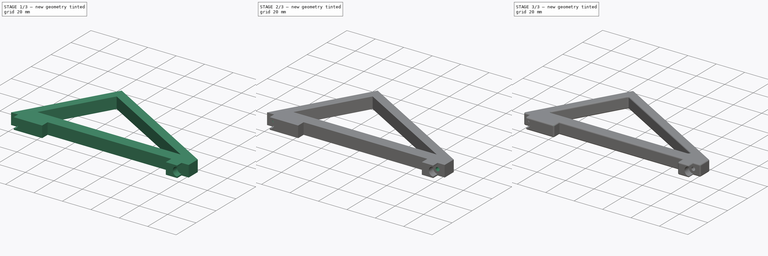
[diagram: build sequence overview — one tinted view per stage of 3, left to right]
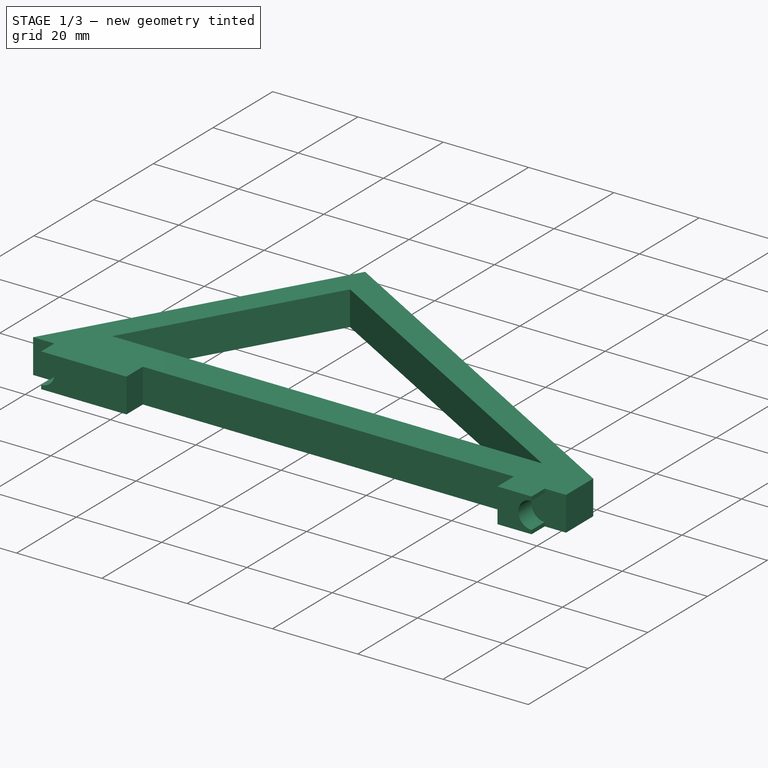
[diagram: stage 1 of 3 — iso view after this stage's code; geometry added in this stage tinted green]
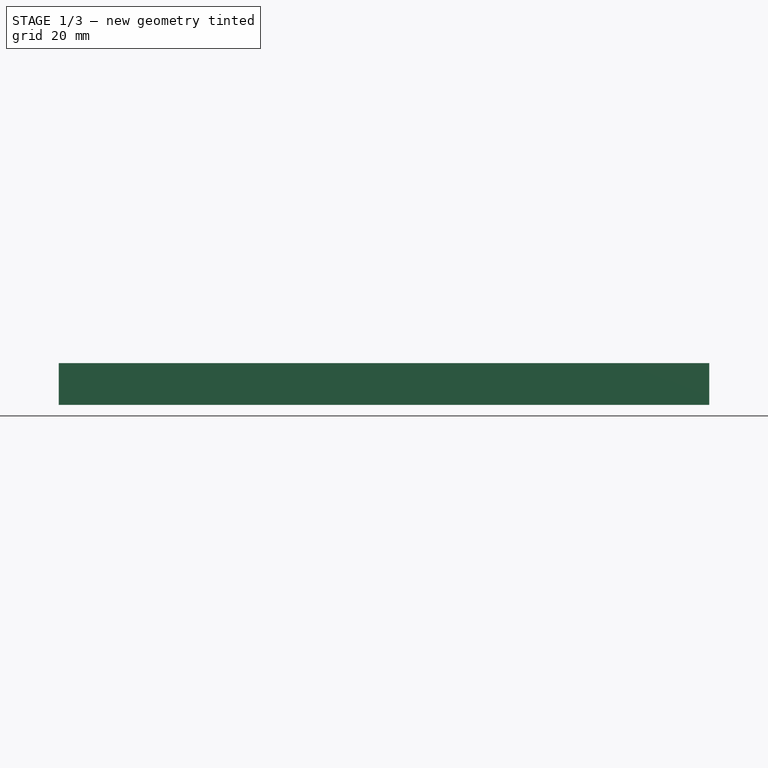
[diagram: stage 1 of 3 — front view after this stage's code; geometry added in this stage tinted green]
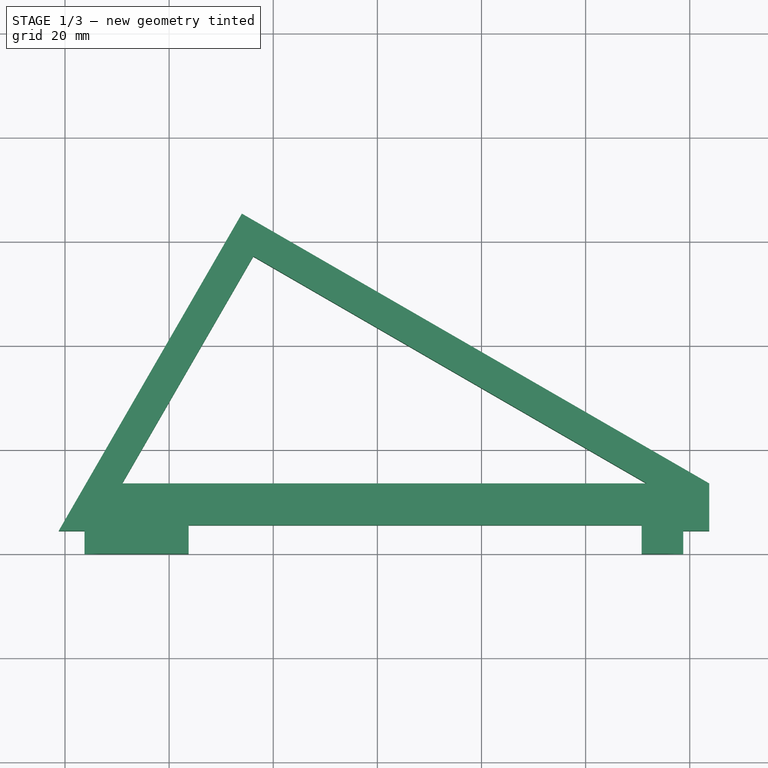
[diagram: stage 1 of 3 — top view after this stage's code; geometry added in this stage tinted green]
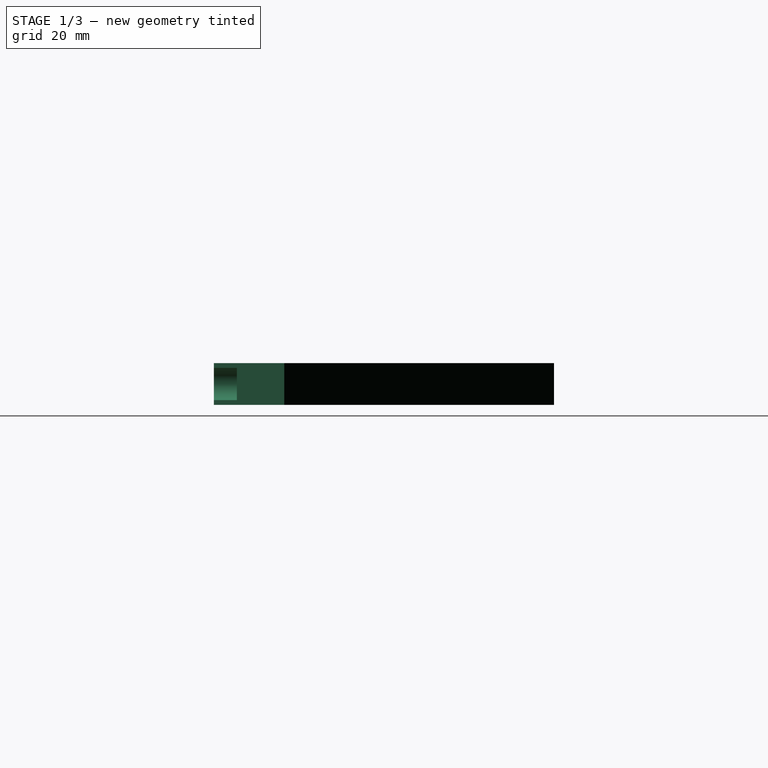
[diagram: stage 1 of 3 — right view after this stage's code; geometry added in this stage tinted green]
FCSTD DOCUMENT  (FreeCAD 0.20R29410 (Git))
Label: TouchPanelHolder
License: All rights reserved
LicenseURL: http://en.wikipedia.org/wiki/All_rights_reserved
objects: Sketcher::SketchObject×5, PartDesign::Pocket×3, PartDesign::Pad×1, PartDesign::Fillet×1, PartDesign::Body×1
note: 16 computed .brp shape members not serialized (recipe doc carries the construction recipe); baked Part::Feature solids carry a one-line shape summary decoded from their .brp

FEATURE [Sketcher::SketchObject] Sketch
  FullyConstrained = true
  MapMode = 5
  Support = -> [XY_Plane]
  sketch-geometry (23):
    g0: LineSegment StartX=-26.0293 StartY=65.3341 StartZ=0 EndX=-63.75 EndY=-1.42e-14 EndZ=0
    g1: GeomPoint X=-56.25 Y=-1.42e-14 Z=0
    g2: GeomPoint X=58.75 Y=-1.42e-14 Z=0
    g3: LineSegment StartX=-23.8332 StartY=57.138 StartZ=0 EndX=-49.0276 EndY=13.5 EndZ=0
    g4: LineSegment StartX=-49.0276 StartY=13.5 StartZ=0 EndX=51.75 EndY=13.5 EndZ=0
    g5: LineSegment StartX=51.75 StartY=13.5 StartZ=0 EndX=-23.8332 EndY=57.138 EndZ=0
    g6: LineSegment StartX=-23.8332 StartY=57.138 StartZ=0 EndX=-20.8332 EndY=62.3341 EndZ=0
    g7: LineSegment StartX=63.75 StartY=13.5 StartZ=0 EndX=-26.0293 EndY=65.3341 EndZ=0
    g8: LineSegment StartX=63.75 StartY=-1.42e-14 StartZ=0 EndX=63.75 EndY=13.5 EndZ=0
    g9: LineSegment StartX=-56.25 StartY=-1.42e-14 StartZ=0 EndX=-56.25 EndY=12.9904 EndZ=0
    g10: LineSegment StartX=58.75 StartY=-1.42e-14 StartZ=0 EndX=58.75 EndY=16.3868 EndZ=0
    g11: LineSegment StartX=-23.8332 StartY=57.138 StartZ=0 EndX=-29.0293 EndY=60.138 EndZ=0
    g12: LineSegment StartX=-36.25 StartY=-1.42e-14 StartZ=0 EndX=50.75 EndY=-1.42e-14 EndZ=0
    g13: LineSegment StartX=-36.25 StartY=-1.42e-14 StartZ=0 EndX=-36.25 EndY=5.5 EndZ=0
    g14: LineSegment StartX=-36.25 StartY=5.5 StartZ=0 EndX=50.75 EndY=5.5 EndZ=0
    g15: LineSegment StartX=50.75 StartY=5.5 StartZ=0 EndX=50.75 EndY=-1.42e-14 EndZ=0
    g16: LineSegment StartX=51.75 StartY=13.5 StartZ=0 EndX=51.75 EndY=5.5 EndZ=0
    g17: LineSegment StartX=50.75 StartY=-1.42e-14 StartZ=0 EndX=58.75 EndY=-1.42e-14 EndZ=0
    g18: LineSegment StartX=58.75 StartY=-1.42e-14 StartZ=0 EndX=63.75 EndY=-1.42e-14 EndZ=0
    g19: LineSegment StartX=-61.2674 StartY=4.3 StartZ=0 EndX=-36.25 EndY=4.3 EndZ=0
    g20: LineSegment StartX=50.75 StartY=4.3 StartZ=0 EndX=63.75 EndY=4.3 EndZ=0
    g21: LineSegment StartX=-63.75 StartY=-1.42e-14 StartZ=0 EndX=-56.25 EndY=-1.42e-14 EndZ=0
    g22: LineSegment StartX=-56.25 StartY=-1.42e-14 StartZ=0 EndX=-36.25 EndY=-1.42e-14 EndZ=0
  constraints (65):
    c: Coincident(g7,g0)
    c: Coincident(g3,g4)
    c: Horizontal(g4)
    c: Coincident(g4,g5)
    c: Coincident(g5,g3)
    c: Parallel(g3,g0)
    c: Coincident(g6,g3)
    c: DistanceX(g1,g2) = 115
    c: Distance(g6) = 6
    c: PointOnObject(g6,g7)
    c: Coincident(g8,g18)
    c: Vertical(g8)
    c: Coincident(g9,g1)
    c: PointOnObject(g9,g0)
    c: Vertical(g9)
    c: Coincident(g10,g2)
    c: PointOnObject(g10,g7)
    c: Vertical(g10)
    c: Perpendicular(g0,g7)
    c: Perpendicular(g5,g3)
    c: PointOnObject(g6,g3)
    c: Coincident(g11,g3)
    c: PointOnObject(g11,g0)
    c: PointOnObject(g11,g5)
    c: PointOnObject(g7,g4)
    c: Coincident(g7,g8)
    c: Coincident(g22,g12)
    c: Horizontal(g12)
    c: Coincident(g22,g13)
    c: Vertical(g13)
    c: Coincident(g13,g14)
    c: Horizontal(g14)
    c: Vertical(g15)
    c: DistanceY(g13,g13) = 5.5
    c: Coincident(g15,g14)
    c: DistanceX(g14,g10) = 8
    c: Coincident(g17,g15)
    c: Coincident(g0,g21)
    c: Equal(g11,g6)
    c: Coincident(g16,g4)
    c: PointOnObject(g16,g14)
    c: Vertical(g16)
    c: DistanceY(g16,g16) = 8
    c: Coincident(g12,g17)
    c: Coincident(g17,g18)
    c: Horizontal(g17)
    c: Horizontal(g18)
    c: Coincident(g17,g10)
    c: PointOnObject(g19,g0)
    c: PointOnObject(g19,g13)
    c: Horizontal(g19)
    c: PointOnObject(g20,g15)
    c: PointOnObject(g20,g8)
    c: Horizontal(g20)
    c: DistanceY(g0,g19) = 4.3
    c: PointOnObject(g20,g19)
    c: Symmetric(g0,g8,g-1)  '_-_'
    c: Coincident(g21,g22)
    c: Horizontal(g21)
    c: Horizontal(g22)
    c: Coincident(g1,g21)
    c: DistanceX(g22,g22) = 20
    c: Angle(g4,g3) = 1.0472
    c: DistanceX(g0,g9) = 7.5
    c: DistanceX(g10,g7) = 5
FEATURE [Sketcher::SketchObject] Sketch001
  ExternalGeometry = -> [Sketch]
  FullyConstrained = true
  MapMode = 5
  Support = -> [XY_Plane]
  sketch-geometry (11):
    g0: LineSegment StartX=-63.75 StartY=5.86e-14 StartZ=0 EndX=-26.0293 EndY=65.3341 EndZ=0
    g1: LineSegment StartX=-26.0293 StartY=65.3341 StartZ=0 EndX=63.75 EndY=13.5 EndZ=0
    g2: LineSegment StartX=63.75 StartY=13.5 StartZ=0 EndX=63.75 EndY=3.201e-12 EndZ=0
    g3: LineSegment StartX=63.75 StartY=3.201e-12 StartZ=0 EndX=50.75 EndY=-3.0941e-12 EndZ=0
    g4: LineSegment StartX=50.75 StartY=-3.0941e-12 StartZ=0 EndX=50.75 EndY=5.5 EndZ=0
    g5: LineSegment StartX=50.75 StartY=5.5 StartZ=0 EndX=-36.25 EndY=5.5 EndZ=0
    g6: LineSegment StartX=-36.25 StartY=5.5 StartZ=0 EndX=-36.25 EndY=-9.3889e-12 EndZ=0
    g7: LineSegment StartX=-36.25 StartY=-9.3889e-12 StartZ=0 EndX=-63.75 EndY=5.86e-14 EndZ=0
    g8: LineSegment StartX=-49.0276 StartY=13.5 StartZ=0 EndX=-23.8332 EndY=57.138 EndZ=0
    g9: LineSegment StartX=-23.8332 StartY=57.138 StartZ=0 EndX=51.75 EndY=13.5 EndZ=0
    g10: LineSegment StartX=51.75 StartY=13.5 StartZ=0 EndX=-49.0276 EndY=13.5 EndZ=0
  constraints (22):
    c: Coincident(g-6,g0)
    c: Coincident(g0,g-6)
    c: Coincident(g0,g1)
    c: Coincident(g1,g-5)
    c: Coincident(g1,g2)
    c: Coincident(g2,g-5)
    c: Coincident(g2,g3)
    c: Coincident(g3,g-4)
    c: Coincident(g3,g4)
    c: Coincident(g4,g-4)
    c: Coincident(g4,g5)
    c: Coincident(g5,g-3)
    c: Coincident(g5,g6)
    c: Coincident(g6,g-3)
    c: Coincident(g6,g7)
    c: Coincident(g7,g0)
    c: Coincident(g-7,g8)
    c: Coincident(g8,g-8)
    c: Coincident(g8,g9)
    c: Coincident(g9,g-8)
    c: Coincident(g9,g10)
    c: Coincident(g10,g8)
FEATURE [PartDesign::Pad] Pad
  Direction = (0,0,1)
  Length = 8
  Length2 = 10
  Midplane = true
  Profile = -> Sketch001
  ReferenceAxis = -> Sketch001 [N_Axis]
  Type = 0
FEATURE [Sketcher::SketchObject] Sketch002
  ExternalGeometry = -> [Sketch]
  FullyConstrained = true
  MapMode = 5
  Placement = pos=(0,0,0) rot=(1,0,0;1.5708rad)
  Support = -> [XZ_Plane]
  expr: Constraints[27] = <<Pad>>.Length
  sketch-geometry (14):
    g0: ArcOfCircle CenterX=-56.25 CenterY=-1.4e-15 CenterZ=0 NormalX=0 NormalY=0 NormalZ=1 AngleXU=0 Radius=3.1 StartAngle=4.71239 EndAngle=7.85398
    g1: LineSegment StartX=-56.25 StartY=4 StartZ=0 EndX=-63.75 EndY=4 EndZ=0
    g2: LineSegment StartX=-63.75 StartY=4 StartZ=0 EndX=-63.75 EndY=-4 EndZ=0
    g3: LineSegment StartX=-63.75 StartY=-4 StartZ=0 EndX=-56.25 EndY=-4 EndZ=0
    g4: ArcOfCircle CenterX=58.75 CenterY=-1.8e-15 CenterZ=0 NormalX=0 NormalY=0 NormalZ=1 AngleXU=0 Radius=3.1 StartAngle=1.5708 EndAngle=4.71239
    g5: LineSegment StartX=58.75 StartY=4 StartZ=0 EndX=63.75 EndY=4 EndZ=0
    g6: LineSegment StartX=63.75 StartY=4 StartZ=0 EndX=63.75 EndY=-4 EndZ=0
    g7: LineSegment StartX=63.75 StartY=-4 StartZ=0 EndX=58.75 EndY=-4 EndZ=0
    g8: LineSegment StartX=-56.25 StartY=3.1 StartZ=0 EndX=-56.25 EndY=-3.1 EndZ=0
    g9: LineSegment StartX=-56.25 StartY=3.1 StartZ=0 EndX=-56.25 EndY=4 EndZ=0
    g10: LineSegment StartX=-56.25 StartY=-3.1 StartZ=0 EndX=-56.25 EndY=-4 EndZ=0
    g11: LineSegment StartX=58.75 StartY=-3.1 StartZ=0 EndX=58.75 EndY=-4 EndZ=0
    g12: LineSegment StartX=58.75 StartY=3.1 StartZ=0 EndX=58.75 EndY=4 EndZ=0
    g13: LineSegment StartX=58.75 StartY=-3.1 StartZ=0 EndX=58.75 EndY=3.1 EndZ=0
  constraints (40):
    c: Coincident(g0,g-3)
    c: Radius(g0) = 3.1
    c: Horizontal(g1)
    c: Coincident(g2,g1)
    c: Vertical(g2)
    c: Coincident(g3,g2)
    c: Horizontal(g3)
    c: Coincident(g4,g-4)
    c: Equal(g0,g4)
    c: Horizontal(g5)
    c: Coincident(g6,g5)
    c: Vertical(g6)
    c: Coincident(g7,g6)
    c: Horizontal(g7)
    c: PointOnObject(g-6,g6)
    c: Coincident(g8,g0)
    c: Coincident(g8,g0)
    c: Vertical(g8)
    c: PointOnObject(g0,g8)
    c: Coincident(g9,g0)
    c: Coincident(g9,g1)
    c: Vertical(g9)
    c: Coincident(g10,g0)
    c: Vertical(g10)
    c: Coincident(g3,g10)
    c: PointOnObject(g-5,g2)
    c: Equal(g9,g10)
    c: DistanceY(g2,g2) = 8
    c: Coincident(g11,g4)
    c: Vertical(g11)
    c: Coincident(g12,g4)
    c: Vertical(g12)
    c: Coincident(g5,g12)
    c: Coincident(g7,g11)
    c: Coincident(g13,g4)
    c: Coincident(g13,g4)
    c: Vertical(g13)
    c: PointOnObject(g4,g13)
    c: Equal(g9,g12)
    c: Equal(g11,g10)
FEATURE [PartDesign::Pocket] Pocket
  BaseFeature = -> Pad
  Direction = (0,1,2e-16)
  Length = 4.4
  Length2 = 5
  Profile = -> Sketch002
  ReferenceAxis = -> Sketch002 [N_Axis]
  Type = 0
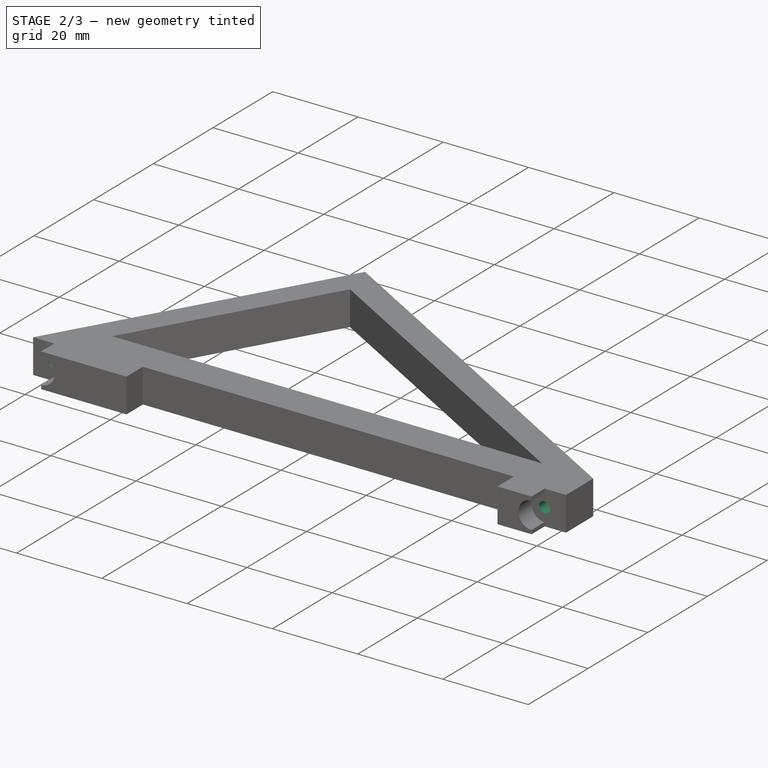
[diagram: stage 2 of 3 — iso view after this stage's code; geometry added in this stage tinted green]
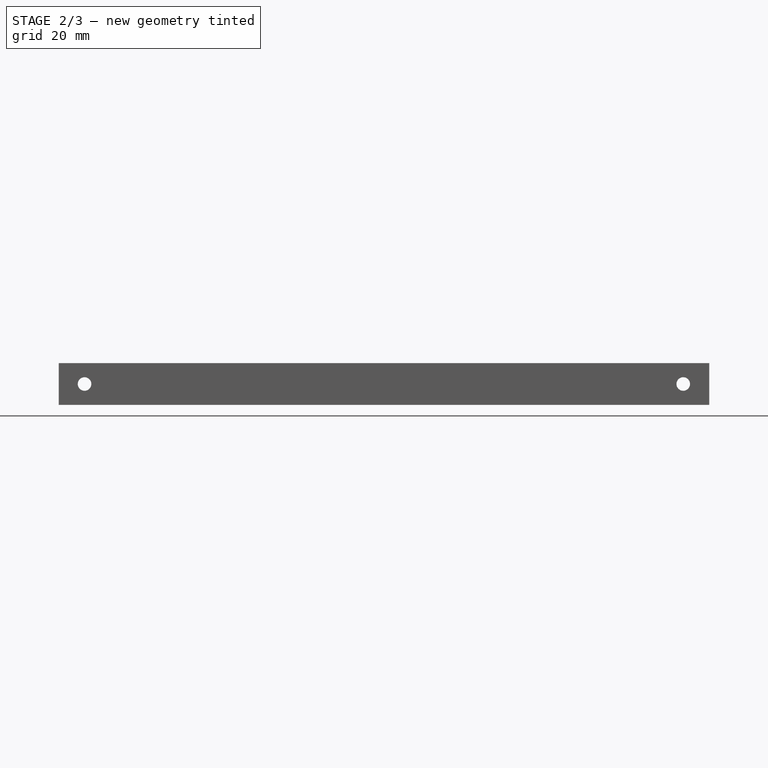
[diagram: stage 2 of 3 — front view after this stage's code; geometry added in this stage tinted green]
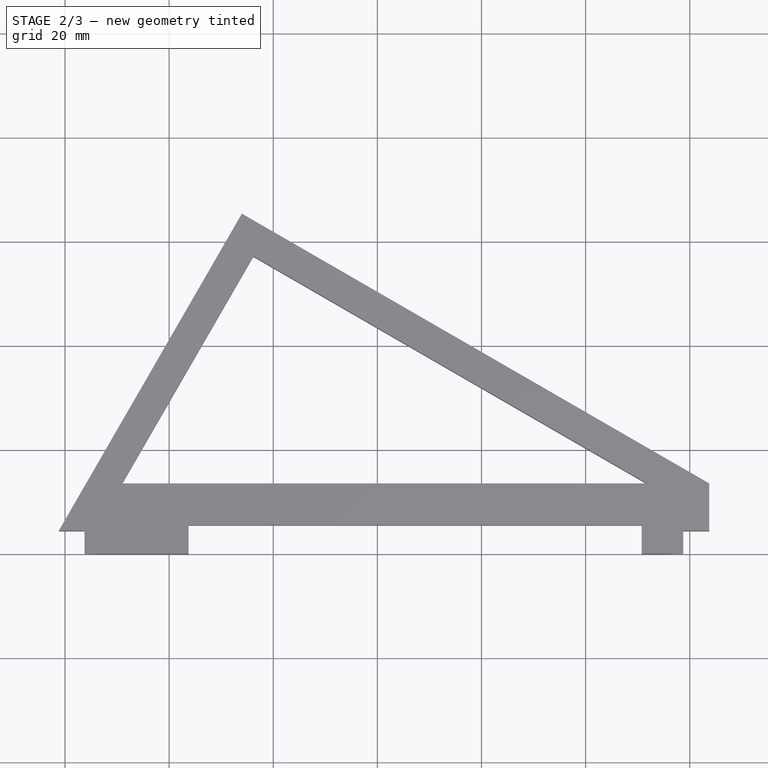
[diagram: stage 2 of 3 — top view after this stage's code; geometry added in this stage tinted green]
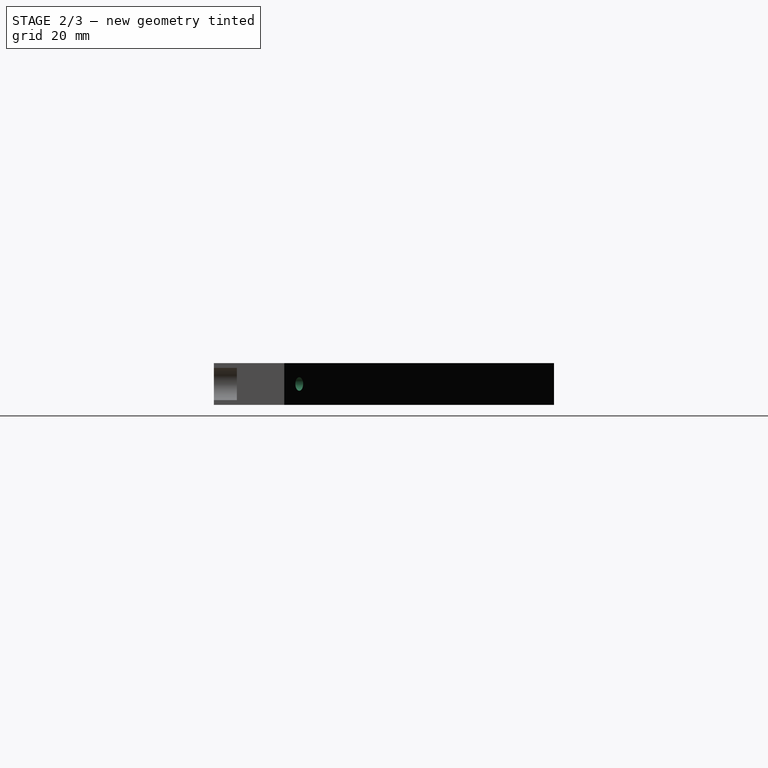
[diagram: stage 2 of 3 — right view after this stage's code; geometry added in this stage tinted green]
FEATURE [Sketcher::SketchObject] Sketch003
  AttachmentOffset = pos=(0,0,-4.4) rot=(0,0,1;0rad)
  ExternalGeometry = -> [Sketch]
  FullyConstrained = true
  MapMode = 5
  Placement = pos=(0,4.4,1e-15) rot=(1,0,0;1.5708rad)
  Support = -> [XZ_Plane]
  expr: .AttachmentOffset.Base.z = <<Sketch002>>.AttachmentOffset.Base.z - <<Pocket>>.Length
  sketch-geometry (2):
    g0: Circle CenterX=-56.25 CenterY=-1.273e-13 CenterZ=0 NormalX=0 NormalY=0 NormalZ=1 AngleXU=0 Radius=1.3
    g1: Circle CenterX=58.75 CenterY=-1.268e-13 CenterZ=0 NormalX=0 NormalY=0 NormalZ=1 AngleXU=0 Radius=1.3
  constraints (4):
    c: Radius(g0) = 1.3
    c: Equal(g0,g1)
    c: Coincident(g1,g-4)
    c: Coincident(g0,g-3)
FEATURE [PartDesign::Pocket] Pocket001
  BaseFeature = -> Pocket
  Direction = (0,1,2e-16)
  Length = 5
  Length2 = 5
  Profile = -> Sketch003
  ReferenceAxis = -> Sketch003 [N_Axis]
  Type = 1
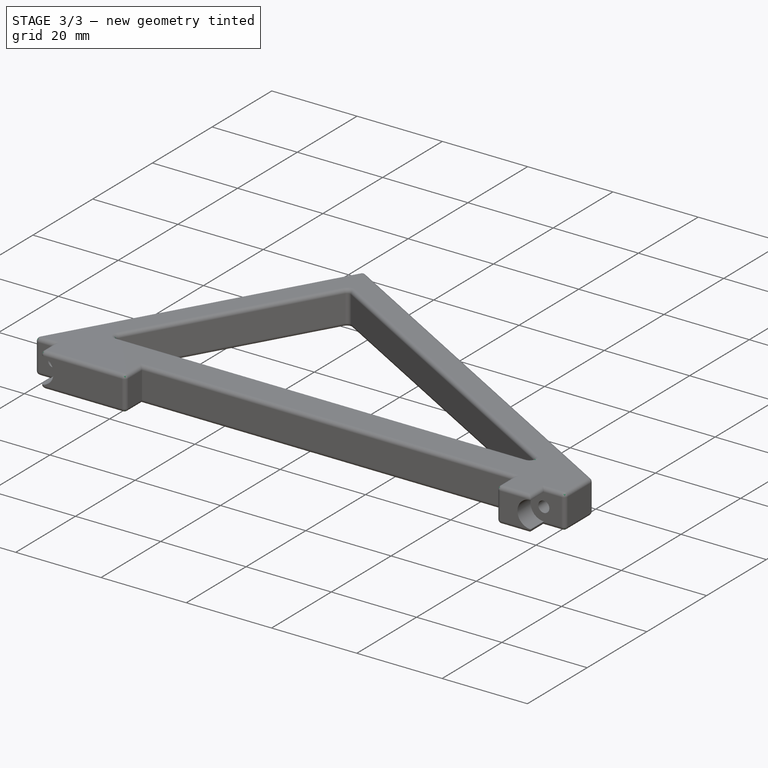
[diagram: stage 3 of 3 — iso view after this stage's code; geometry added in this stage tinted green]
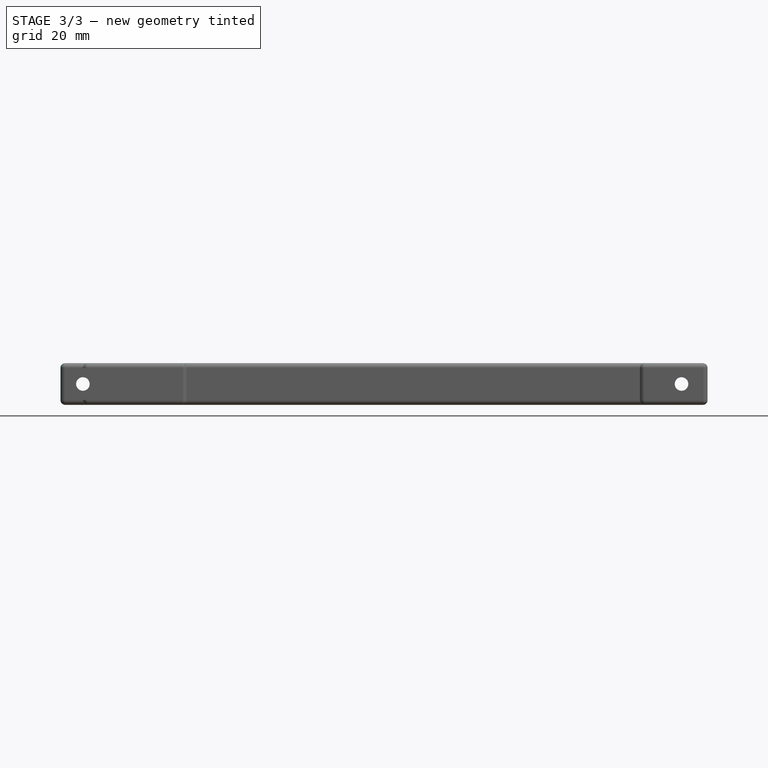
[diagram: stage 3 of 3 — front view after this stage's code; geometry added in this stage tinted green]
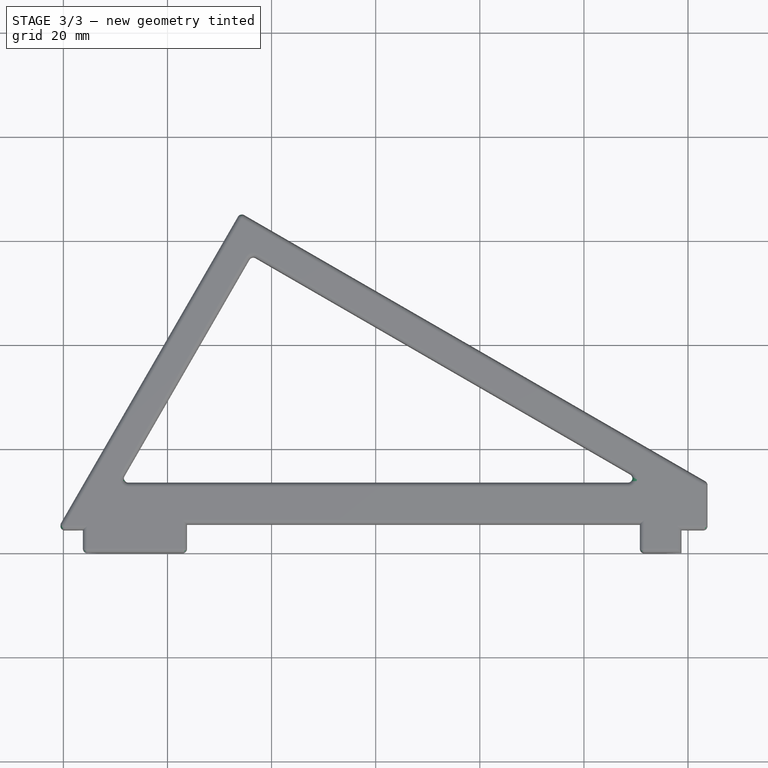
[diagram: stage 3 of 3 — top view after this stage's code; geometry added in this stage tinted green]
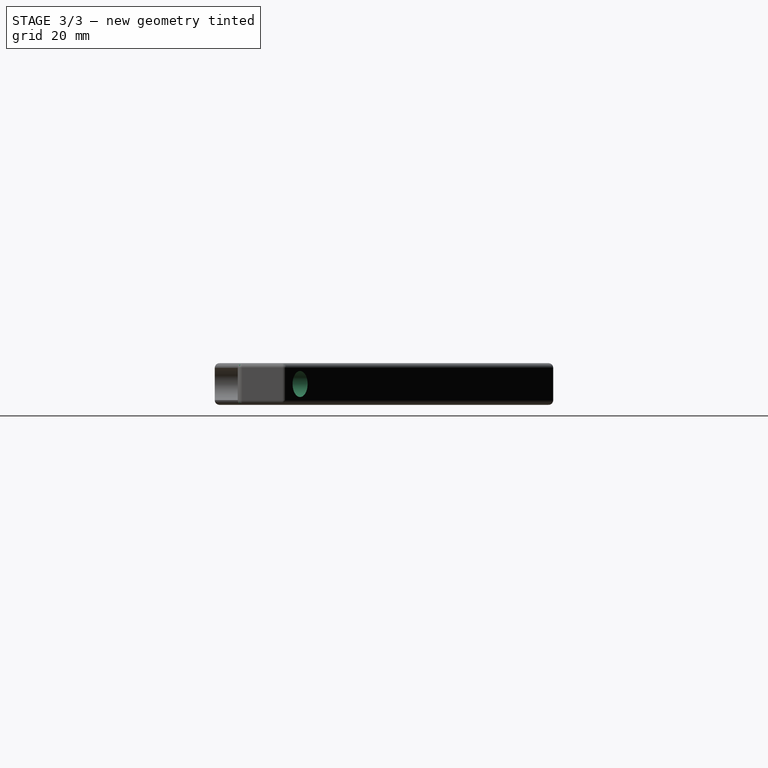
[diagram: stage 3 of 3 — right view after this stage's code; geometry added in this stage tinted green]
FEATURE [Sketcher::SketchObject] Sketch004
  AttachmentOffset = pos=(0,0,-7.4) rot=(0,0,1;0rad)
  ExternalGeometry = -> [Sketch]
  FullyConstrained = true
  MapMode = 5
  Placement = pos=(0,7.4,1.6e-15) rot=(1,0,0;1.5708rad)
  Support = -> [XZ_Plane]
  expr: .AttachmentOffset.Base.z = <<Sketch002>>.AttachmentOffset.Base.z - <<Pocket>>.Length - 3mm
  sketch-geometry (2):
    g0: Circle CenterX=-56.25 CenterY=-8.21e-14 CenterZ=0 NormalX=0 NormalY=0 NormalZ=1 AngleXU=0 Radius=2.5
    g1: Circle CenterX=58.75 CenterY=-8.15e-14 CenterZ=0 NormalX=0 NormalY=0 NormalZ=1 AngleXU=0 Radius=2.5
  constraints (4):
    c: Radius(g0) = 2.5
    c: Equal(g0,g1)
    c: Coincident(g1,g-4)
    c: Coincident(g0,g-3)
FEATURE [PartDesign::Pocket] Pocket002
  BaseFeature = -> Pocket001
  Direction = (0,1,2e-16)
  Length = 5
  Length2 = 5
  Profile = -> Sketch004
  ReferenceAxis = -> Sketch004 [N_Axis]
  Type = 1
FEATURE [PartDesign::Fillet] Fillet
  Base = -> Pocket002 [Face2,Face5,Face7,Face16,Face17,Face18,Edge3,Edge2,Edge57,Edge55,Edge54,Edge49]
  BaseFeature = -> Pocket002
  Radius = 0.89
  SupportTransform = false
  UseAllEdges = false
FEATURE [PartDesign::Body] Body
  Group = -> [Sketch,Sketch001,Pad,Sketch002,Pocket,Sketch003,Pocket001,Sketch004,Pocket002,Fillet]
  Origin = -> Origin
  Tip = -> Fillet
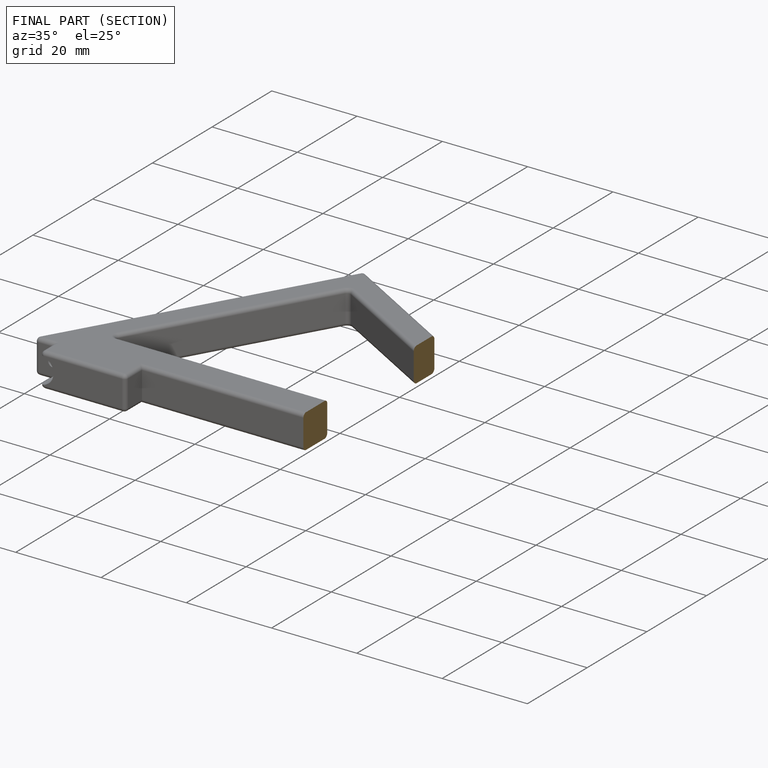
[diagram: finished part — half-section view (interior)]
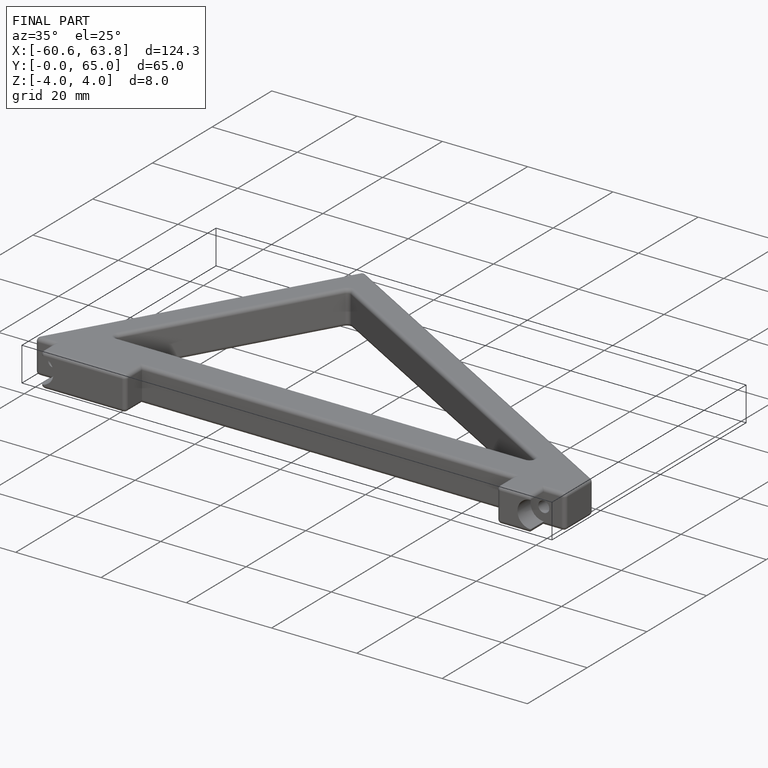
[diagram: finished part — iso view with bounding-box wireframe]
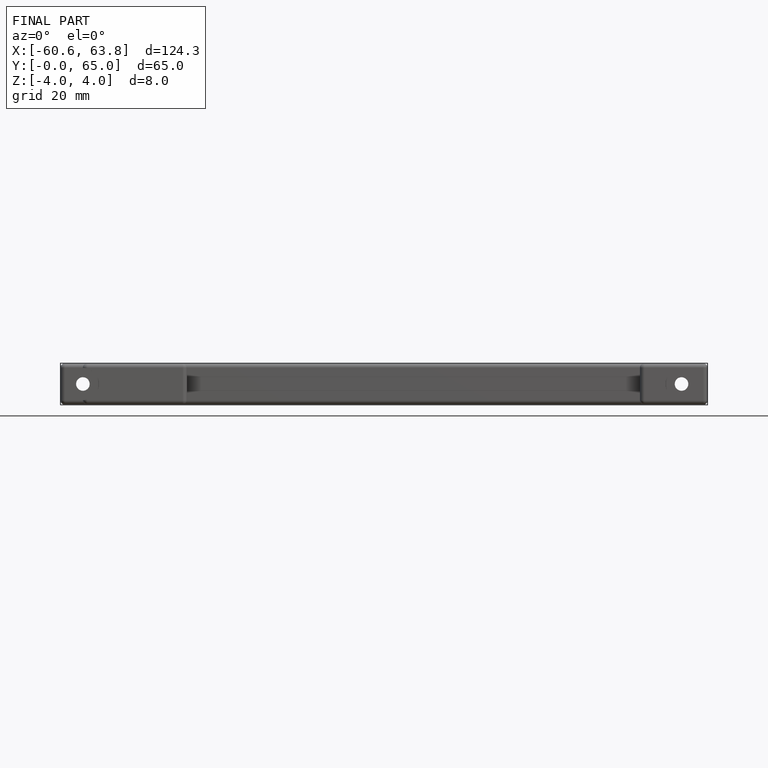
[diagram: finished part — front view with bounding-box wireframe]
